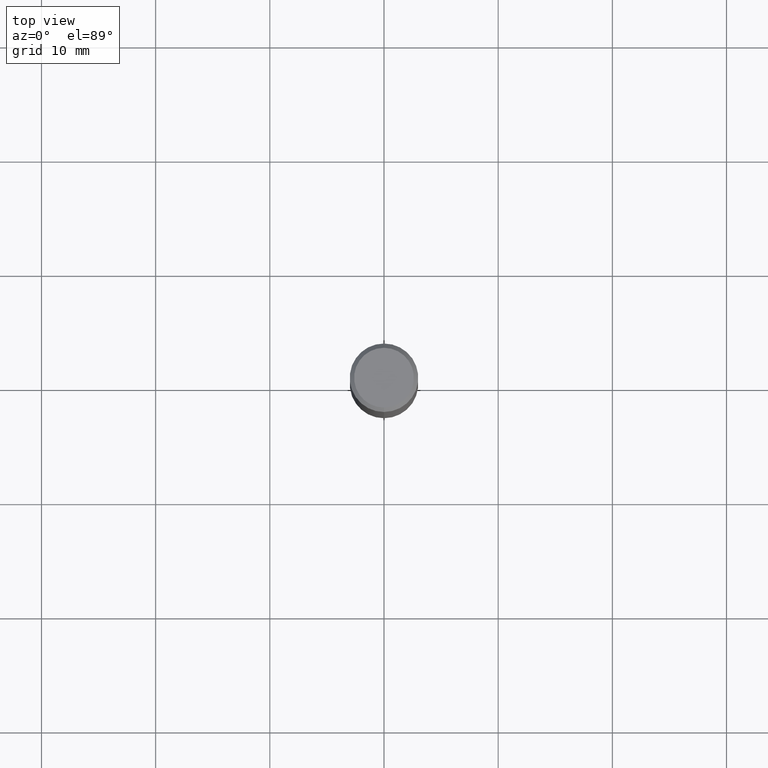
[diagram: clean part render]
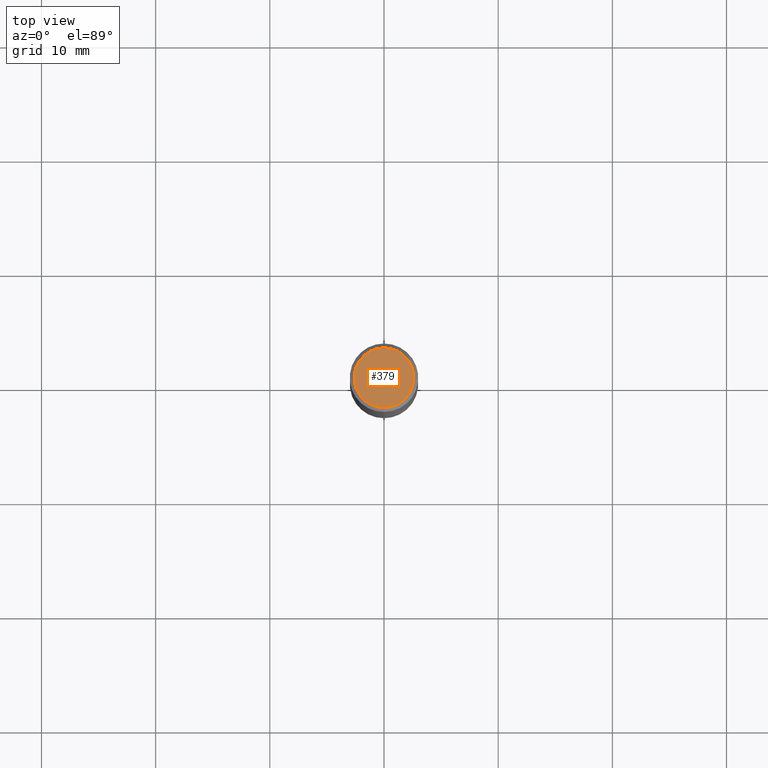
[diagram: same view with one face highlighted and labeled with its STEP entity id]
A machine part, top view. The second image highlights one B-rep face of the part: STEP entity #379.
In plain terms, the highlighted planar face has unit normal (0, -0, -1).
Its self-contained STEP definition (entity closure, byte-faithful):
#39 = CARTESIAN_POINT ( 'NONE',  ( 7.199434520694541042E-16, 0.1031000000000000111, -1.353060024532617206E-16 ) ) ;
#61 = EDGE_CURVE ( 'NONE', #89, #349, #207, .T. ) ;
#67 = EDGE_LOOP ( 'NONE', ( #548, #398 ) ) ;
#68 = DIRECTION ( 'NONE',  ( -6.982962677686265922E-15, -1.000000000000000000, 3.491120058031798950E-15 ) ) ;
#89 = VERTEX_POINT ( 'NONE', #326 ) ;
#156 = AXIS2_PLACEMENT_3D ( 'NONE', #368, #459, #68 ) ;
#163 = FACE_OUTER_BOUND ( 'NONE', #67, .T. ) ;
#207 = CIRCLE ( 'NONE', #156, 0.1031000000000000111 ) ;
#210 = AXIS2_PLACEMENT_3D ( 'NONE', #358, #484, #492 ) ;
#296 = PLANE ( 'NONE',  #557 ) ;
#326 = CARTESIAN_POINT ( 'NONE',  ( -7.587710785535310407E-16, -0.1031000000000000111, 3.311180301514658338E-16 ) ) ;
#336 = DIRECTION ( 'NONE',  ( 2.445721087227315994E-29, -3.491120058031798950E-15, -1.000000000000000000 ) ) ;
#349 = VERTEX_POINT ( 'NONE', #430 ) ;
#358 = CARTESIAN_POINT ( 'NONE',  ( 7.059760297607168192E-46, -1.004289602807351628E-31, -2.881644783161265537E-17 ) ) ;
#368 = CARTESIAN_POINT ( 'NONE',  ( 7.059760297607168192E-46, -1.004289602807351628E-31, -2.881644783161265537E-17 ) ) ;
#379 = ADVANCED_FACE ( 'NONE', ( #163 ), #296, .F. ) ;
#398 = ORIENTED_EDGE ( 'NONE', *, *, #61, .T. ) ;
#430 = CARTESIAN_POINT ( 'NONE',  ( 7.723156721521011834E-16, 0.1031000000000000111, -3.887509258146911569E-16 ) ) ;
#459 = DIRECTION ( 'NONE',  ( -2.445721087227316555E-29, 3.491120058031798950E-15, 1.000000000000000000 ) ) ;
#467 = CIRCLE ( 'NONE', #210, 0.1031000000000000111 ) ;
#473 = DIRECTION ( 'NONE',  ( 6.982962677686265922E-15, 1.000000000000000000, -3.491120058031798950E-15 ) ) ;
#484 = DIRECTION ( 'NONE',  ( -2.445721087227316555E-29, 3.491120058031798950E-15, 1.000000000000000000 ) ) ;
#492 = DIRECTION ( 'NONE',  ( -6.982962677686265922E-15, -1.000000000000000000, 3.491120058031798950E-15 ) ) ;
#505 = EDGE_CURVE ( 'NONE', #349, #89, #467, .T. ) ;
#548 = ORIENTED_EDGE ( 'NONE', *, *, #505, .T. ) ;
#557 = AXIS2_PLACEMENT_3D ( 'NONE', #39, #336, #473 ) ;